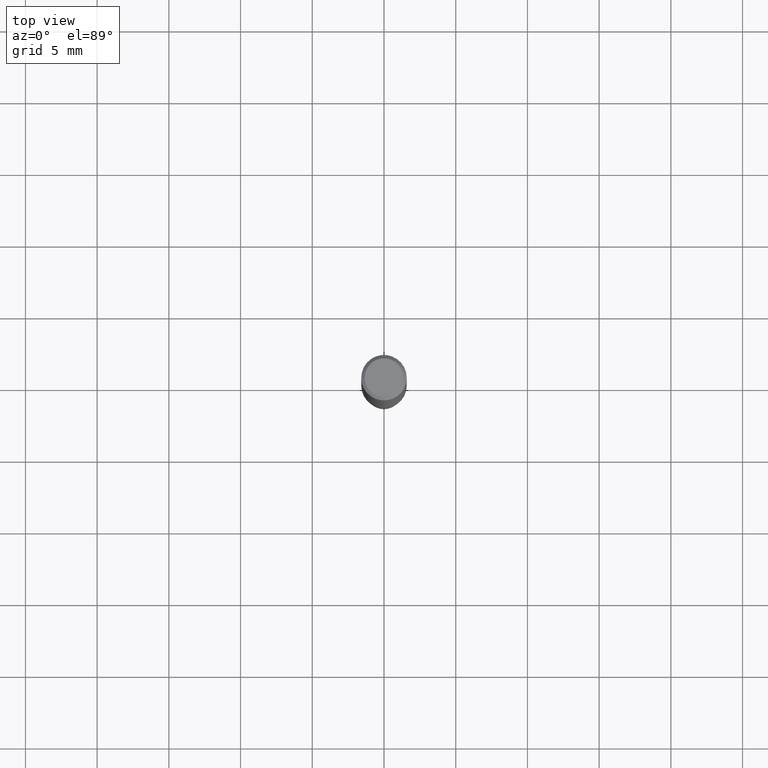
[diagram: clean part render]
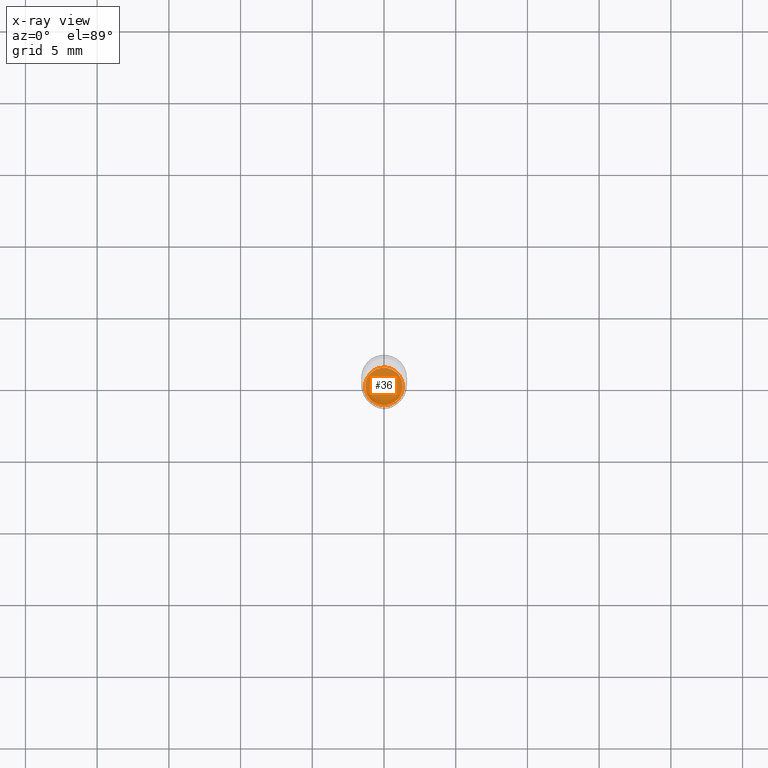
[diagram: x-ray — body ghosted, one internal face saturated and labeled with its STEP entity id]
A machine part, top view, then the same camera in x-ray: the body is ghosted and one INTERNAL B-rep face — a face not visible from any outside direction — is saturated and labeled: STEP entity #36.
In plain terms, the highlighted planar face has unit normal (-0, 0, 1).
Its self-contained STEP definition (entity closure, byte-faithful):
#6 = FACE_OUTER_BOUND ( 'NONE', #313, .T. ) ;
#36 = ADVANCED_FACE ( 'NONE', ( #6 ), #138, .F. ) ;
#77 = CARTESIAN_POINT ( 'NONE',  ( 3.425857250584757942E-29, -4.891216207585362759E-15, -1.400900000000000034 ) ) ;
#84 = ORIENTED_EDGE ( 'NONE', *, *, #462, .F. ) ;
#106 = DIRECTION ( 'NONE',  ( -2.445468806185136597E-29, 3.491481338843145583E-15, 1.000000000000000000 ) ) ;
#137 = CIRCLE ( 'NONE', #419, 0.05149999999999999023 ) ;
#138 = PLANE ( 'NONE',  #228 ) ;
#143 = DIRECTION ( 'NONE',  ( -2.445468806185136597E-29, 3.491481338843145583E-15, 1.000000000000000000 ) ) ;
#162 = DIRECTION ( 'NONE',  ( 1.000000000000000000, -6.982962677686265922E-15, 4.876176775795935793E-29 ) ) ;
#166 = AXIS2_PLACEMENT_3D ( 'NONE', #249, #143, #293 ) ;
#214 = ORIENTED_EDGE ( 'NONE', *, *, #346, .F. ) ;
#228 = AXIS2_PLACEMENT_3D ( 'NONE', #432, #237, #162 ) ;
#237 = DIRECTION ( 'NONE',  ( -2.438088387897960049E-29, 3.491481338843145188E-15, 1.000000000000000000 ) ) ;
#249 = CARTESIAN_POINT ( 'NONE',  ( 3.425857250584757942E-29, -4.891216207585362759E-15, -1.400900000000000034 ) ) ;
#261 = DIRECTION ( 'NONE',  ( 1.000000000000000000, -6.982962677686268288E-15, 0.000000000000000000 ) ) ;
#293 = DIRECTION ( 'NONE',  ( 1.000000000000000000, -6.982962677686268288E-15, 0.000000000000000000 ) ) ;
#296 = CARTESIAN_POINT ( 'NONE',  ( 0.05149999999999999023, -5.250838785486205905E-15, -1.400900000000000034 ) ) ;
#313 = EDGE_LOOP ( 'NONE', ( #214, #84 ) ) ;
#346 = EDGE_CURVE ( 'NONE', #355, #477, #457, .T. ) ;
#355 = VERTEX_POINT ( 'NONE', #296 ) ;
#419 = AXIS2_PLACEMENT_3D ( 'NONE', #77, #106, #261 ) ;
#432 = CARTESIAN_POINT ( 'NONE',  ( 3.425857250584757942E-29, -4.891216207585362759E-15, -1.400900000000000034 ) ) ;
#457 = CIRCLE ( 'NONE', #166, 0.05149999999999999023 ) ;
#462 = EDGE_CURVE ( 'NONE', #477, #355, #137, .T. ) ;
#477 = VERTEX_POINT ( 'NONE', #484 ) ;
#484 = CARTESIAN_POINT ( 'NONE',  ( -0.05149999999999999023, -4.522637471494800031E-15, -1.400900000000000034 ) ) ;